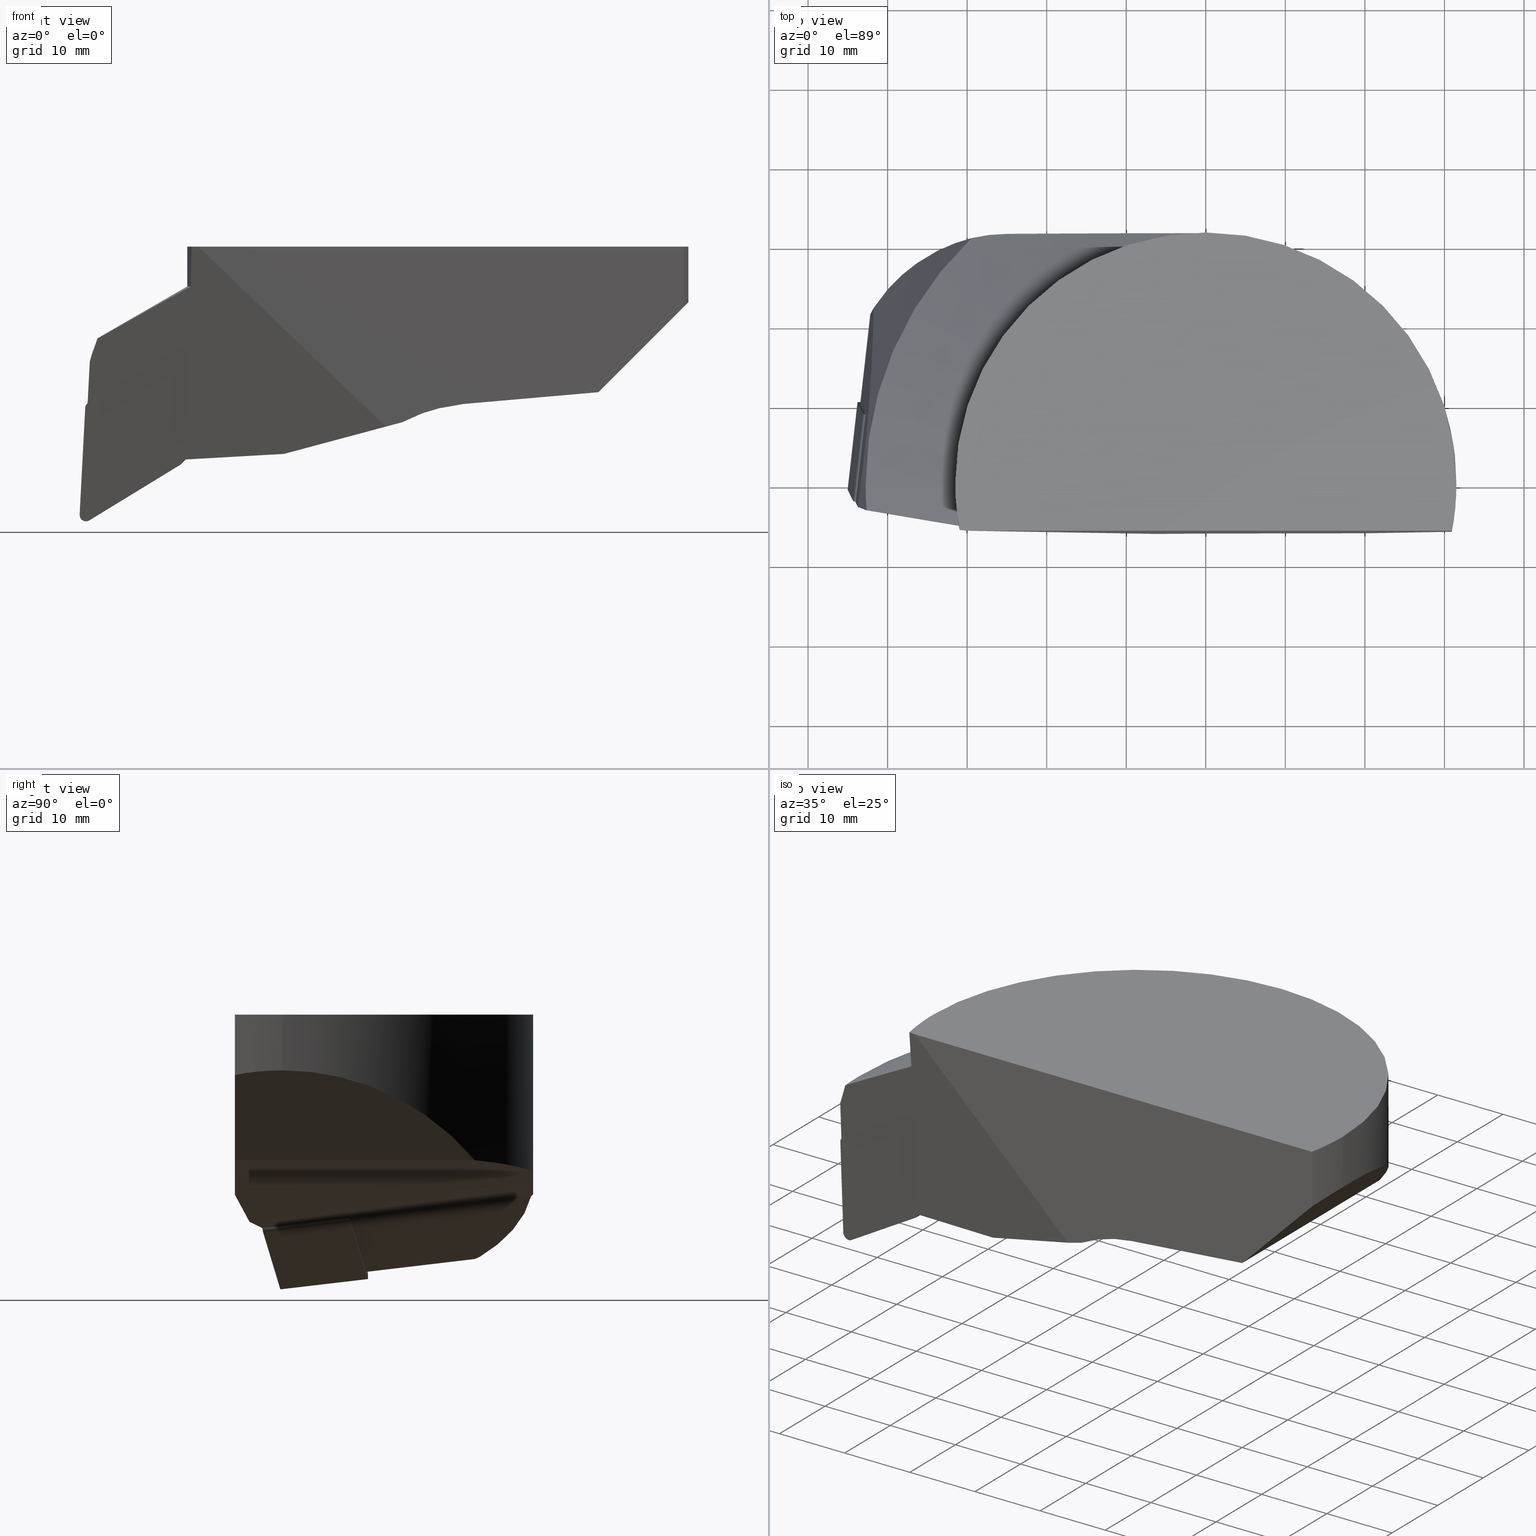
[diagram: canonical four-view strip — front | top / right | iso, engineering-drawing reading convention]
A machine part, canonical four-view strip (front | top / right | iso — engineering-drawing reading convention). The complete STEP part file that produces these views, byte-faithful:
ISO-10303-21;
HEADER;
FILE_DESCRIPTION((''),'1');
FILE_NAME('//Big_tech03/bigt/Translate/11_3D_Field/02_Step_Field/91_\X2\65CB524A30C430FC30EB\X0\/F\X2\30AB30FC30C830EA30C330B8\X0\/F63-DDJNL-45035-15.stp','2012-12-17T05:11:24',(''),(''),'Spatial Interop R18','Kubotek KeyCreator V8.5.1 (14335)',' ');
FILE_SCHEMA(('CONFIG_CONTROL_DESIGN'));
ENDSEC;
DATA;
#1=DESIGN_CONTEXT('',#27,'design');
#2=APPLICATION_PROTOCOL_DEFINITION('INTERNATIONAL STANDARD','config_control_design',1994,#27);
#3=PRODUCT_CATEGORY_RELATIONSHIP('NONE','NONE',#28,#29);
#4=DATE_AND_TIME(#30,#31);
#5=DATE_TIME_ROLE('creation_date');
#6=DATE_TIME_ROLE('classification_date');
#7=PERSON_AND_ORGANIZATION_ROLE('creator');
#8=PERSON_AND_ORGANIZATION_ROLE('design_supplier');
#9=PERSON_AND_ORGANIZATION_ROLE('classification_officer');
#10=PERSON_AND_ORGANIZATION_ROLE('design_owner');
#11=APPROVAL_PERSON_ORGANIZATION(#32,#33,#34);
#12=APPROVAL_DATE_TIME(#4,#33);
#13=CC_DESIGN_APPROVAL(#33,(#35,#36,#37));
#14=CC_DESIGN_DATE_AND_TIME_ASSIGNMENT(#4,#5,(#37));
#15=CC_DESIGN_DATE_AND_TIME_ASSIGNMENT(#4,#6,(#35));
#16=CC_DESIGN_PERSON_AND_ORGANIZATION_ASSIGNMENT(#32,#10,(#38));
#17=CC_DESIGN_PERSON_AND_ORGANIZATION_ASSIGNMENT(#32,#7,(#37));
#18=CC_DESIGN_PERSON_AND_ORGANIZATION_ASSIGNMENT(#32,#7,(#36));
#19=CC_DESIGN_PERSON_AND_ORGANIZATION_ASSIGNMENT(#32,#8,(#36));
#20=CC_DESIGN_SECURITY_CLASSIFICATION(#35,(#36));
#21=CC_DESIGN_PERSON_AND_ORGANIZATION_ASSIGNMENT(#32,#9,(#35));
#22=SHAPE_DEFINITION_REPRESENTATION(#39,#40);
#23= (GEOMETRIC_REPRESENTATION_CONTEXT(3)GLOBAL_UNCERTAINTY_ASSIGNED_CONTEXT((#43))GLOBAL_UNIT_ASSIGNED_CONTEXT((#45,#46,#47))REPRESENTATION_CONTEXT('NONE','WORKSPACE'));
#27=APPLICATION_CONTEXT('CONFIGURATION CONTROLLED 3D DESIGNS OF MECHANICAL PARTS AND ASSEMBLIES');
#28=PRODUCT_CATEGORY('part','NONE');
#29=PRODUCT_RELATED_PRODUCT_CATEGORY('detail',' ',(#38));
#30=CALENDAR_DATE(2012,17,11);
#31=LOCAL_TIME(14,11,24.0,#49);
#32=PERSON_AND_ORGANIZATION(#50,#51);
#33=APPROVAL(#52,'SOLID MODEL');
#34=APPROVAL_ROLE('APPROVED');
#35=SECURITY_CLASSIFICATION('','',#53);
#36=PRODUCT_DEFINITION_FORMATION_WITH_SPECIFIED_SOURCE(' ','NONE',#38,.NOT_KNOWN.);
#37=PRODUCT_DEFINITION('NONE','NONE',#36,#1);
#38=PRODUCT('1','1','PART-1-DESC',(#54));
#39=PRODUCT_DEFINITION_SHAPE('NONE','NONE',#37);
#40=ADVANCED_BREP_SHAPE_REPRESENTATION('1',(#55,#56),#23);
#43=UNCERTAINTY_MEASURE_WITH_UNIT(LENGTH_MEASURE(1.0E-006),#45,'','');
#45= (CONVERSION_BASED_UNIT('MILLIMETRE',#59)LENGTH_UNIT()NAMED_UNIT(#62));
#46= (NAMED_UNIT(#64)PLANE_ANGLE_UNIT()SI_UNIT($,.RADIAN.));
#47= (NAMED_UNIT(#64)SOLID_ANGLE_UNIT()SI_UNIT($,.STERADIAN.));
#49=COORDINATED_UNIVERSAL_TIME_OFFSET(9,0,.AHEAD.);
#50=PERSON('','UNSPECIFIED',$,$,$,$);
#51=ORGANIZATION('UNSPECIFIED','UNSPECIFIED','UNSPECIFIED');
#52=APPROVAL_STATUS('approved');
#53=SECURITY_CLASSIFICATION_LEVEL('unclassified');
#54=MECHANICAL_CONTEXT('',#27,'mechanical');
#55=MANIFOLD_SOLID_BREP('1',#70);
#56=AXIS2_PLACEMENT_3D('',#71,#72,#73);
#59=LENGTH_MEASURE_WITH_UNIT(LENGTH_MEASURE(1.0),#74);
#62=DIMENSIONAL_EXPONENTS(1.0,0.0,0.0,0.0,0.0,0.0,0.0);
#64=DIMENSIONAL_EXPONENTS(0.0,0.0,0.0,0.0,0.0,0.0,0.0);
#70=CLOSED_SHELL('',(#75,#76,#77,#78,#79,#80,#81,#82,#83,#84,#85,#86,#87,#88,#89,#90,#91,#92,#93,#94,#95,#96,#97,#98,#99,#100,#101,#102,#103,#104,#105,#106));
#71=CARTESIAN_POINT('',(0.0,0.0,0.0));
#72=DIRECTION('',(0.0,0.0,1.0));
#73=DIRECTION('',(1.0,0.0,0.0));
#74= (NAMED_UNIT(#62)LENGTH_UNIT()SI_UNIT(.MILLI.,.METRE.));
#75=ADVANCED_FACE('',(#108),#109,.T.);
#76=ADVANCED_FACE('',(#110),#111,.T.);
#77=ADVANCED_FACE('',(#112),#113,.T.);
#78=ADVANCED_FACE('',(#114),#115,.F.);
#79=ADVANCED_FACE('',(#116),#117,.T.);
#80=ADVANCED_FACE('',(#118),#119,.T.);
#81=ADVANCED_FACE('',(#120),#121,.T.);
#82=ADVANCED_FACE('',(#122),#123,.T.);
#83=ADVANCED_FACE('',(#124),#125,.T.);
#84=ADVANCED_FACE('',(#126),#127,.F.);
#85=ADVANCED_FACE('',(#128),#129,.F.);
#86=ADVANCED_FACE('',(#130),#131,.F.);
#87=ADVANCED_FACE('',(#132),#133,.F.);
#88=ADVANCED_FACE('',(#134),#135,.F.);
#89=ADVANCED_FACE('',(#136),#137,.F.);
#90=ADVANCED_FACE('',(#138),#139,.F.);
#91=ADVANCED_FACE('',(#140),#141,.F.);
#92=ADVANCED_FACE('',(#142),#143,.F.);
#93=ADVANCED_FACE('',(#144),#145,.F.);
#94=ADVANCED_FACE('',(#146),#147,.F.);
#95=ADVANCED_FACE('',(#148),#149,.T.);
#96=ADVANCED_FACE('',(#150),#151,.T.);
#97=ADVANCED_FACE('',(#152),#153,.T.);
#98=ADVANCED_FACE('',(#154),#155,.T.);
#99=ADVANCED_FACE('',(#156),#157,.T.);
#100=ADVANCED_FACE('',(#158),#159,.T.);
#101=ADVANCED_FACE('',(#160),#161,.T.);
#102=ADVANCED_FACE('',(#162),#163,.F.);
#103=ADVANCED_FACE('',(#164),#165,.F.);
#104=ADVANCED_FACE('',(#166),#167,.F.);
#105=ADVANCED_FACE('',(#168),#169,.F.);
#106=ADVANCED_FACE('',(#170),#171,.F.);
#108=FACE_OUTER_BOUND('',#172,.T.);
#109=CYLINDRICAL_SURFACE('',#173,1.2);
#110=FACE_OUTER_BOUND('',#174,.T.);
#111=CYLINDRICAL_SURFACE('',#175,20.0);
#112=FACE_OUTER_BOUND('',#176,.T.);
#113=PLANE('',#177);
#114=FACE_OUTER_BOUND('',#178,.T.);
#115=PLANE('',#179);
#116=FACE_OUTER_BOUND('',#180,.T.);
#117=CYLINDRICAL_SURFACE('',#181,0.799999999916283);
#118=FACE_OUTER_BOUND('',#182,.T.);
#119=CYLINDRICAL_SURFACE('',#183,0.800000000092216);
#120=FACE_OUTER_BOUND('',#184,.T.);
#121=PLANE('',#185);
#122=FACE_OUTER_BOUND('',#186,.T.);
#123=CYLINDRICAL_SURFACE('',#187,0.800000000003615);
#124=FACE_OUTER_BOUND('',#188,.T.);
#125=PLANE('',#189);
#126=FACE_OUTER_BOUND('',#190,.T.);
#127=PLANE('',#191);
#128=FACE_OUTER_BOUND('',#192,.T.);
#129=PLANE('',#193);
#130=FACE_OUTER_BOUND('',#194,.T.);
#131=CYLINDRICAL_SURFACE('',#195,0.800000000092215);
#132=FACE_OUTER_BOUND('',#196,.T.);
#133=CYLINDRICAL_SURFACE('',#197,0.799999999916283);
#134=FACE_OUTER_BOUND('',#198,.T.);
#135=PLANE('',#199);
#136=FACE_OUTER_BOUND('',#200,.T.);
#137=CYLINDRICAL_SURFACE('',#201,0.79999999855735);
#138=FACE_OUTER_BOUND('',#202,.T.);
#139=PLANE('',#203);
#140=FACE_OUTER_BOUND('',#204,.T.);
#141=PLANE('',#205);
#142=FACE_OUTER_BOUND('',#206,.T.);
#143=PLANE('',#207);
#144=FACE_OUTER_BOUND('',#208,.T.);
#145=CYLINDRICAL_SURFACE('',#209,20.0);
#146=FACE_OUTER_BOUND('',#210,.T.);
#147=PLANE('',#211);
#148=FACE_OUTER_BOUND('',#212,.T.);
#149=CONICAL_SURFACE('',#213,42.7806144481552,0.349065849601132);
#150=FACE_OUTER_BOUND('',#214,.T.);
#151=CONICAL_SURFACE('',#215,33.0934934796696,1.0471975488034);
#152=FACE_OUTER_BOUND('',#216,.T.);
#153=CYLINDRICAL_SURFACE('',#217,31.5);
#154=FACE_OUTER_BOUND('',#218,.T.);
#155=CYLINDRICAL_SURFACE('',#219,31.5);
#156=FACE_OUTER_BOUND('',#220,.T.);
#157=CYLINDRICAL_SURFACE('',#221,31.5);
#158=FACE_OUTER_BOUND('',#222,.T.);
#159=CONICAL_SURFACE('',#223,33.1066753683403,1.0471975488034);
#160=FACE_OUTER_BOUND('',#224,.T.);
#161=CONICAL_SURFACE('',#225,42.9119649542641,0.349065849601121);
#162=FACE_OUTER_BOUND('',#226,.T.);
#163=PLANE('',#227);
#164=FACE_OUTER_BOUND('',#228,.T.);
#165=PLANE('',#229);
#166=FACE_OUTER_BOUND('',#230,.T.);
#167=PLANE('',#231);
#168=FACE_OUTER_BOUND('',#232,.T.);
#169=PLANE('',#233);
#170=FACE_OUTER_BOUND('',#234,.T.);
#171=PLANE('',#235);
#172=EDGE_LOOP('',(#236,#237,#238,#239));
#173=AXIS2_PLACEMENT_3D('',#240,#241,#242);
#174=EDGE_LOOP('',(#243,#244,#245,#246,#247,#248,#249));
#175=AXIS2_PLACEMENT_3D('',#250,#251,#252);
#176=EDGE_LOOP('',(#253,#254,#255,#256,#257,#258,#259,#260));
#177=AXIS2_PLACEMENT_3D('',#261,#262,#263);
#178=EDGE_LOOP('',(#264,#265,#266,#267,#268,#269,#270,#271));
#179=AXIS2_PLACEMENT_3D('',#272,#273,#274);
#180=EDGE_LOOP('',(#275,#276,#277,#278));
#181=AXIS2_PLACEMENT_3D('',#279,#280,#281);
#182=EDGE_LOOP('',(#282,#283,#284,#285));
#183=AXIS2_PLACEMENT_3D('',#286,#287,#288);
#184=EDGE_LOOP('',(#289,#290,#291,#292));
#185=AXIS2_PLACEMENT_3D('',#293,#294,#295);
#186=EDGE_LOOP('',(#296,#297,#298,#299));
#187=AXIS2_PLACEMENT_3D('',#300,#301,#302);
#188=EDGE_LOOP('',(#303,#304,#305,#306));
#189=AXIS2_PLACEMENT_3D('',#307,#308,#309);
#190=EDGE_LOOP('',(#310,#311,#312,#313,#314,#315,#316,#317,#318,#319));
#191=AXIS2_PLACEMENT_3D('',#320,#321,#322);
#192=EDGE_LOOP('',(#323,#324,#325,#326));
#193=AXIS2_PLACEMENT_3D('',#327,#328,#329);
#194=EDGE_LOOP('',(#330,#331,#332,#333));
#195=AXIS2_PLACEMENT_3D('',#334,#335,#336);
#196=EDGE_LOOP('',(#337,#338,#339,#340));
#197=AXIS2_PLACEMENT_3D('',#341,#342,#343);
#198=EDGE_LOOP('',(#344,#345,#346,#347));
#199=AXIS2_PLACEMENT_3D('',#348,#349,#350);
#200=EDGE_LOOP('',(#351,#352,#353,#354));
#201=AXIS2_PLACEMENT_3D('',#355,#356,#357);
#202=EDGE_LOOP('',(#358,#359,#360,#361,#362,#363));
#203=AXIS2_PLACEMENT_3D('',#364,#365,#366);
#204=EDGE_LOOP('',(#367,#368,#369,#370,#371,#372,#373));
#205=AXIS2_PLACEMENT_3D('',#374,#375,#376);
#206=EDGE_LOOP('',(#377,#378,#379,#380));
#207=AXIS2_PLACEMENT_3D('',#381,#382,#383);
#208=EDGE_LOOP('',(#384,#385,#386,#387,#388,#389));
#209=AXIS2_PLACEMENT_3D('',#390,#391,#392);
#210=EDGE_LOOP('',(#393,#394,#395,#396,#397));
#211=AXIS2_PLACEMENT_3D('',#398,#399,#400);
#212=EDGE_LOOP('',(#401,#402,#403,#404));
#213=AXIS2_PLACEMENT_3D('',#405,#406,#407);
#214=EDGE_LOOP('',(#408,#409,#410,#411,#412));
#215=AXIS2_PLACEMENT_3D('',#413,#414,#415);
#216=EDGE_LOOP('',(#416,#417,#418,#419));
#217=AXIS2_PLACEMENT_3D('',#420,#421,#422);
#218=EDGE_LOOP('',(#423,#424,#425,#426,#427,#428,#429,#430));
#219=AXIS2_PLACEMENT_3D('',#431,#432,#433);
#220=EDGE_LOOP('',(#434,#435,#436,#437));
#221=AXIS2_PLACEMENT_3D('',#438,#439,#440);
#222=EDGE_LOOP('',(#441,#442,#443,#444));
#223=AXIS2_PLACEMENT_3D('',#445,#446,#447);
#224=EDGE_LOOP('',(#448,#449,#450,#451));
#225=AXIS2_PLACEMENT_3D('',#452,#453,#454);
#226=EDGE_LOOP('',(#455,#456,#457,#458,#459,#460,#461,#462,#463,#464,#465,#466,#467,#468));
#227=AXIS2_PLACEMENT_3D('',#469,#470,#471);
#228=EDGE_LOOP('',(#472,#473,#474,#475,#476));
#229=AXIS2_PLACEMENT_3D('',#477,#478,#479);
#230=EDGE_LOOP('',(#480,#481,#482,#483));
#231=AXIS2_PLACEMENT_3D('',#484,#485,#486);
#232=EDGE_LOOP('',(#487,#488,#489,#490,#491,#492,#493));
#233=AXIS2_PLACEMENT_3D('',#494,#495,#496);
#234=EDGE_LOOP('',(#497,#498,#499,#500));
#235=AXIS2_PLACEMENT_3D('',#501,#502,#503);
#236=ORIENTED_EDGE('',*,*,#504,.F.);
#237=ORIENTED_EDGE('',*,*,#505,.T.);
#238=ORIENTED_EDGE('',*,*,#506,.T.);
#239=ORIENTED_EDGE('',*,*,#507,.F.);
#240=CARTESIAN_POINT('',(-42.2473332457357,10.3813485368924,-31.1449538277493));
#241=DIRECTION('',(-0.111468932180646,-0.986981129763168,-0.115943635659434));
#242=DIRECTION('',(0.992405994768391,-0.104449876167681,-0.0649658750138644));
#243=ORIENTED_EDGE('',*,*,#504,.T.);
#244=ORIENTED_EDGE('',*,*,#508,.F.);
#245=ORIENTED_EDGE('',*,*,#509,.T.);
#246=ORIENTED_EDGE('',*,*,#510,.T.);
#247=ORIENTED_EDGE('',*,*,#511,.T.);
#248=ORIENTED_EDGE('',*,*,#512,.T.);
#249=ORIENTED_EDGE('',*,*,#513,.T.);
#250=CARTESIAN_POINT('',(-25.0,11.5,-27.1398531867254));
#251=DIRECTION('',(-0.0,-0.0,-1.0));
#252=DIRECTION('',(-0.868594311794104,-0.495523885921685,0.0));
#253=ORIENTED_EDGE('',*,*,#514,.F.);
#254=ORIENTED_EDGE('',*,*,#515,.F.);
#255=ORIENTED_EDGE('',*,*,#516,.F.);
#256=ORIENTED_EDGE('',*,*,#517,.F.);
#257=ORIENTED_EDGE('',*,*,#518,.F.);
#258=ORIENTED_EDGE('',*,*,#519,.F.);
#259=ORIENTED_EDGE('',*,*,#520,.F.);
#260=ORIENTED_EDGE('',*,*,#506,.F.);
#261=CARTESIAN_POINT('',(-40.0939677485227,9.71883845017198,-27.5755332299906));
#262=DIRECTION('',(0.111468932180646,0.986981129763168,0.115943635659434));
#263=DIRECTION('',(0.0,-0.11667073712445,0.993170649535535));
#264=ORIENTED_EDGE('',*,*,#507,.T.);
#265=ORIENTED_EDGE('',*,*,#520,.T.);
#266=ORIENTED_EDGE('',*,*,#521,.T.);
#267=ORIENTED_EDGE('',*,*,#522,.T.);
#268=ORIENTED_EDGE('',*,*,#523,.F.);
#269=ORIENTED_EDGE('',*,*,#524,.T.);
#270=ORIENTED_EDGE('',*,*,#525,.T.);
#271=ORIENTED_EDGE('',*,*,#508,.T.);
#272=CARTESIAN_POINT('',(-42.8669603047499,9.81615057373341,-21.230314038411));
#273=DIRECTION('',(0.992405994765368,-0.104449876194446,-0.0649658750170109));
#274=DIRECTION('',(-0.0653231828941861,1.15962657470321E-018,-0.997864159981995));
#275=ORIENTED_EDGE('',*,*,#521,.F.);
#276=ORIENTED_EDGE('',*,*,#519,.T.);
#277=ORIENTED_EDGE('',*,*,#526,.T.);
#278=ORIENTED_EDGE('',*,*,#527,.T.);
#279=CARTESIAN_POINT('',(-42.2867693535104,8.96109274568335,-19.0169783835985));
#280=DIRECTION('',(0.111468932180646,0.986981129763168,0.115943635659434));
#281=DIRECTION('',(-0.526656513222584,-0.0402689242801194,0.849123860704404));
#282=ORIENTED_EDGE('',*,*,#528,.F.);
#283=ORIENTED_EDGE('',*,*,#529,.T.);
#284=ORIENTED_EDGE('',*,*,#530,.F.);
#285=ORIENTED_EDGE('',*,*,#515,.T.);
#286=CARTESIAN_POINT('',(-31.5712930246008,8.50831995422721,-25.4646328727936));
#287=DIRECTION('',(0.111468932180646,0.986981129763168,0.115943635659434));
#288=DIRECTION('',(0.526656513222579,0.0402689242801204,-0.849123860704407));
#289=ORIENTED_EDGE('',*,*,#531,.T.);
#290=ORIENTED_EDGE('',*,*,#532,.F.);
#291=ORIENTED_EDGE('',*,*,#516,.T.);
#292=ORIENTED_EDGE('',*,*,#530,.T.);
#293=CARTESIAN_POINT('',(-31.1499678139742,8.54053509365502,-26.1439319614354));
#294=DIRECTION('',(0.526656513222576,0.040268924280121,-0.849123860704409));
#295=DIRECTION('',(-0.84981316293397,-3.57659895301419E-018,-0.527084042733377));
#296=ORIENTED_EDGE('',*,*,#533,.T.);
#297=ORIENTED_EDGE('',*,*,#534,.F.);
#298=ORIENTED_EDGE('',*,*,#517,.T.);
#299=ORIENTED_EDGE('',*,*,#532,.T.);
#300=CARTESIAN_POINT('',(-42.9908988982399,10.6183296433376,-32.4474091977405));
#301=DIRECTION('',(0.111468932180646,0.986981129763168,0.115943635659434));
#302=DIRECTION('',(-0.992408446727965,0.104455644609561,0.0649191279376828));
#303=ORIENTED_EDGE('',*,*,#535,.T.);
#304=ORIENTED_EDGE('',*,*,#526,.F.);
#305=ORIENTED_EDGE('',*,*,#518,.T.);
#306=ORIENTED_EDGE('',*,*,#534,.T.);
#307=CARTESIAN_POINT('',(-43.7848256556258,10.7018941590256,-32.3954738953901));
#308=DIRECTION('',(-0.99240844672796,0.10445564460955,0.0649191279377773));
#309=DIRECTION('',(0.0652762184737185,-1.15969061697585E-018,0.997867233303996));
#310=ORIENTED_EDGE('',*,*,#527,.F.);
#311=ORIENTED_EDGE('',*,*,#535,.F.);
#312=ORIENTED_EDGE('',*,*,#533,.F.);
#313=ORIENTED_EDGE('',*,*,#531,.F.);
#314=ORIENTED_EDGE('',*,*,#529,.F.);
#315=ORIENTED_EDGE('',*,*,#536,.F.);
#316=ORIENTED_EDGE('',*,*,#537,.F.);
#317=ORIENTED_EDGE('',*,*,#538,.F.);
#318=ORIENTED_EDGE('',*,*,#539,.F.);
#319=ORIENTED_EDGE('',*,*,#540,.F.);
#320=CARTESIAN_POINT('',(-41.3323875850497,-1.24652190149681,-28.8636670221669));
#321=DIRECTION('',(0.111468932180646,0.986981129763168,0.115943635659434));
#322=DIRECTION('',(-2.38064870801066E-018,-0.11667073712445,0.993170649535535));
#323=ORIENTED_EDGE('',*,*,#537,.T.);
#324=ORIENTED_EDGE('',*,*,#541,.F.);
#325=ORIENTED_EDGE('',*,*,#542,.F.);
#326=ORIENTED_EDGE('',*,*,#543,.T.);
#327=CARTESIAN_POINT('',(-32.0236419733036,-2.63455542770529,-26.7736259156798));
#328=DIRECTION('',(0.992408446739063,-0.104455644635683,-0.0649191277259903));
#329=DIRECTION('',(-0.0652762182609467,0.0,-0.997867233317914));
#330=ORIENTED_EDGE('',*,*,#536,.T.);
#331=ORIENTED_EDGE('',*,*,#544,.F.);
#332=ORIENTED_EDGE('',*,*,#545,.F.);
#333=ORIENTED_EDGE('',*,*,#541,.T.);
#334=CARTESIAN_POINT('',(-32.819745065024,-2.54586869912027,-26.7632015921792));
#335=DIRECTION('',(-0.111468932180646,-0.986981129763168,-0.115943635659434));
#336=DIRECTION('',(0.52665651322258,0.0402689242801203,-0.849123860704407));
#337=ORIENTED_EDGE('',*,*,#540,.T.);
#338=ORIENTED_EDGE('',*,*,#546,.F.);
#339=ORIENTED_EDGE('',*,*,#547,.F.);
#340=ORIENTED_EDGE('',*,*,#522,.F.);
#341=CARTESIAN_POINT('',(-43.5352213939337,-2.09309590766413,-20.3155471029842));
#342=DIRECTION('',(-0.111468932180646,-0.986981129763168,-0.115943635659434));
#343=DIRECTION('',(-0.526656513222585,-0.0402689242801194,0.849123860704404));
#344=ORIENTED_EDGE('',*,*,#539,.T.);
#345=ORIENTED_EDGE('',*,*,#548,.F.);
#346=ORIENTED_EDGE('',*,*,#549,.F.);
#347=ORIENTED_EDGE('',*,*,#546,.T.);
#348=CARTESIAN_POINT('',(-32.5369407313422,-4.2353207360881,-12.6534716899625));
#349=DIRECTION('',(-0.526656513222585,-0.0402689242801194,0.849123860704404));
#350=DIRECTION('',(0.849813162933965,3.57659895301404E-018,0.527084042733387));
#351=ORIENTED_EDGE('',*,*,#538,.T.);
#352=ORIENTED_EDGE('',*,*,#543,.F.);
#353=ORIENTED_EDGE('',*,*,#550,.F.);
#354=ORIENTED_EDGE('',*,*,#548,.T.);
#355=CARTESIAN_POINT('',(-32.115615521524,-4.2031055967221,-13.332770777301));
#356=DIRECTION('',(-0.111468932180646,-0.986981129763168,-0.115943635659434));
#357=DIRECTION('',(0.992408446739063,-0.104455644635683,-0.0649191277259903));
#358=ORIENTED_EDGE('',*,*,#551,.F.);
#359=ORIENTED_EDGE('',*,*,#552,.F.);
#360=ORIENTED_EDGE('',*,*,#553,.T.);
#361=ORIENTED_EDGE('',*,*,#512,.F.);
#362=ORIENTED_EDGE('',*,*,#554,.F.);
#363=ORIENTED_EDGE('',*,*,#555,.F.);
#364=CARTESIAN_POINT('',(-0.720414981987392,-6.37878177273581,-24.9956631978092));
#365=DIRECTION('',(-0.0693217457636744,-0.108663956272754,0.991658530025043));
#366=DIRECTION('',(0.997565574209178,0.0,0.069734676830921));
#367=ORIENTED_EDGE('',*,*,#513,.F.);
#368=ORIENTED_EDGE('',*,*,#553,.F.);
#369=ORIENTED_EDGE('',*,*,#556,.F.);
#370=ORIENTED_EDGE('',*,*,#544,.T.);
#371=ORIENTED_EDGE('',*,*,#528,.T.);
#372=ORIENTED_EDGE('',*,*,#514,.T.);
#373=ORIENTED_EDGE('',*,*,#505,.F.);
#374=CARTESIAN_POINT('',(-31.9134787970104,-2.64773221190853,-26.7673688604443));
#375=DIRECTION('',(-0.526616764544056,-0.0402762685221387,0.849148164630345));
#376=DIRECTION('',(0.849837738355606,0.0,0.527044417925689));
#377=ORIENTED_EDGE('',*,*,#551,.T.);
#378=ORIENTED_EDGE('',*,*,#557,.T.);
#379=ORIENTED_EDGE('',*,*,#558,.T.);
#380=ORIENTED_EDGE('',*,*,#559,.T.);
#381=CARTESIAN_POINT('',(-13.0454160017784,10.690496148003,-24.3672426623839));
#382=DIRECTION('',(-0.258819045102521,0.0,0.965925826289068));
#383=DIRECTION('',(0.965925826289068,0.0,0.258819045102521));
#384=ORIENTED_EDGE('',*,*,#555,.T.);
#385=ORIENTED_EDGE('',*,*,#560,.T.);
#386=ORIENTED_EDGE('',*,*,#561,.F.);
#387=ORIENTED_EDGE('',*,*,#562,.T.);
#388=ORIENTED_EDGE('',*,*,#563,.T.);
#389=ORIENTED_EDGE('',*,*,#557,.F.);
#390=CARTESIAN_POINT('',(5.00000000000002,24.0000194638791,-39.7));
#391=DIRECTION('',(-0.0,1.0,0.0));
#392=DIRECTION('',(-0.958611886636189,0.0,-0.284716088059328));
#393=ORIENTED_EDGE('',*,*,#554,.T.);
#394=ORIENTED_EDGE('',*,*,#511,.F.);
#395=ORIENTED_EDGE('',*,*,#564,.F.);
#396=ORIENTED_EDGE('',*,*,#565,.F.);
#397=ORIENTED_EDGE('',*,*,#560,.F.);
#398=CARTESIAN_POINT('',(-12.5,31.5,-14.01620758632));
#399=DIRECTION('',(0.0,-1.0,0.0));
#400=DIRECTION('',(0.0,0.0,-1.0));
#401=ORIENTED_EDGE('',*,*,#566,.F.);
#402=ORIENTED_EDGE('',*,*,#567,.F.);
#403=ORIENTED_EDGE('',*,*,#509,.F.);
#404=ORIENTED_EDGE('',*,*,#525,.F.);
#405=CARTESIAN_POINT('',(0.0,-2.99760216648792E-014,-11.561225304359));
#406=DIRECTION('',(0.0,-0.0,-1.0));
#407=DIRECTION('',(0.394471910307187,0.918907999735881,0.0));
#408=ORIENTED_EDGE('',*,*,#568,.F.);
#409=ORIENTED_EDGE('',*,*,#569,.F.);
#410=ORIENTED_EDGE('',*,*,#564,.T.);
#411=ORIENTED_EDGE('',*,*,#510,.F.);
#412=ORIENTED_EDGE('',*,*,#567,.T.);
#413=CARTESIAN_POINT('',(2.66453525910038E-014,4.21884749357559E-014,-5.92000387656159));
#414=DIRECTION('',(0.0,-0.0,-1.0));
#415=DIRECTION('',(0.707106781186547,0.707106781186548,0.0));
#416=ORIENTED_EDGE('',*,*,#570,.T.);
#417=ORIENTED_EDGE('',*,*,#571,.F.);
#418=ORIENTED_EDGE('',*,*,#572,.T.);
#419=ORIENTED_EDGE('',*,*,#573,.F.);
#420=CARTESIAN_POINT('',(1.11022302462516E-014,8.88178419700125E-015,-1.51534156157351));
#421=DIRECTION('',(0.0,-0.0,1.0));
#422=DIRECTION('',(-0.095677020168762,-0.9954124310112,0.0));
#423=ORIENTED_EDGE('',*,*,#574,.F.);
#424=ORIENTED_EDGE('',*,*,#575,.F.);
#425=ORIENTED_EDGE('',*,*,#570,.F.);
#426=ORIENTED_EDGE('',*,*,#576,.F.);
#427=ORIENTED_EDGE('',*,*,#577,.T.);
#428=ORIENTED_EDGE('',*,*,#561,.T.);
#429=ORIENTED_EDGE('',*,*,#565,.T.);
#430=ORIENTED_EDGE('',*,*,#569,.T.);
#431=CARTESIAN_POINT('',(1.22124532708767E-014,4.44089209850063E-015,-4.06702151976236));
#432=DIRECTION('',(-0.0,-0.0,1.0));
#433=DIRECTION('',(0.0,-1.0,0.0));
#434=ORIENTED_EDGE('',*,*,#574,.T.);
#435=ORIENTED_EDGE('',*,*,#578,.T.);
#436=ORIENTED_EDGE('',*,*,#579,.F.);
#437=ORIENTED_EDGE('',*,*,#580,.F.);
#438=CARTESIAN_POINT('',(9.99200722162641E-015,4.44089209850063E-015,-1.0000000031111));
#439=DIRECTION('',(-0.0,-0.0,1.0));
#440=DIRECTION('',(-0.0940980636667502,0.995562933427198,0.0));
#441=ORIENTED_EDGE('',*,*,#568,.T.);
#442=ORIENTED_EDGE('',*,*,#581,.T.);
#443=ORIENTED_EDGE('',*,*,#582,.F.);
#444=ORIENTED_EDGE('',*,*,#578,.F.);
#445=CARTESIAN_POINT('',(-1.33226762955019E-014,-1.11022302462516E-015,-5.92761444357608));
#446=DIRECTION('',(-0.0,0.0,-1.0));
#447=DIRECTION('',(-0.0844648582605607,0.996426458761018,0.0));
#448=ORIENTED_EDGE('',*,*,#566,.T.);
#449=ORIENTED_EDGE('',*,*,#524,.F.);
#450=ORIENTED_EDGE('',*,*,#583,.F.);
#451=ORIENTED_EDGE('',*,*,#581,.F.);
#452=CARTESIAN_POINT('',(1.77635683940025E-014,4.44089209850063E-015,-11.9221078548224));
#453=DIRECTION('',(-0.0,0.0,-1.0));
#454=DIRECTION('',(-0.0378000786848839,0.999285321643131,0.0));
#455=ORIENTED_EDGE('',*,*,#545,.T.);
#456=ORIENTED_EDGE('',*,*,#556,.T.);
#457=ORIENTED_EDGE('',*,*,#552,.T.);
#458=ORIENTED_EDGE('',*,*,#559,.F.);
#459=ORIENTED_EDGE('',*,*,#584,.T.);
#460=ORIENTED_EDGE('',*,*,#585,.T.);
#461=ORIENTED_EDGE('',*,*,#579,.T.);
#462=ORIENTED_EDGE('',*,*,#582,.T.);
#463=ORIENTED_EDGE('',*,*,#583,.T.);
#464=ORIENTED_EDGE('',*,*,#523,.T.);
#465=ORIENTED_EDGE('',*,*,#547,.T.);
#466=ORIENTED_EDGE('',*,*,#549,.T.);
#467=ORIENTED_EDGE('',*,*,#550,.T.);
#468=ORIENTED_EDGE('',*,*,#542,.T.);
#469=CARTESIAN_POINT('',(-25.772000445692,-4.45759751287333,-17.2651753215983));
#470=DIRECTION('',(0.111468932180646,0.986981129763168,0.115943635659434));
#471=DIRECTION('',(0.0,-0.11667073712445,0.993170649535535));
#472=ORIENTED_EDGE('',*,*,#571,.T.);
#473=ORIENTED_EDGE('',*,*,#575,.T.);
#474=ORIENTED_EDGE('',*,*,#580,.T.);
#475=ORIENTED_EDGE('',*,*,#585,.F.);
#476=ORIENTED_EDGE('',*,*,#586,.T.);
#477=CARTESIAN_POINT('',(0.0,12.75,0.0));
#478=DIRECTION('',(0.0,0.0,-1.0));
#479=DIRECTION('',(-1.0,0.0,0.0));
#480=ORIENTED_EDGE('',*,*,#576,.T.);
#481=ORIENTED_EDGE('',*,*,#573,.T.);
#482=ORIENTED_EDGE('',*,*,#587,.T.);
#483=ORIENTED_EDGE('',*,*,#588,.T.);
#484=CARTESIAN_POINT('',(25.8534106077438,9.08236707319101,-12.6465893922562));
#485=DIRECTION('',(-0.707106781186548,-1.3012649565089E-016,0.707106781186547));
#486=DIRECTION('',(0.707106781186547,0.0,0.707106781186548));
#487=ORIENTED_EDGE('',*,*,#584,.F.);
#488=ORIENTED_EDGE('',*,*,#558,.F.);
#489=ORIENTED_EDGE('',*,*,#563,.F.);
#490=ORIENTED_EDGE('',*,*,#589,.F.);
#491=ORIENTED_EDGE('',*,*,#587,.F.);
#492=ORIENTED_EDGE('',*,*,#572,.F.);
#493=ORIENTED_EDGE('',*,*,#586,.F.);
#494=CARTESIAN_POINT('',(0.424979142992648,-6.00000000000001,-11.3121667590765));
#495=DIRECTION('',(0.0,1.0,0.0));
#496=DIRECTION('',(0.0,0.0,1.0));
#497=ORIENTED_EDGE('',*,*,#589,.T.);
#498=ORIENTED_EDGE('',*,*,#562,.F.);
#499=ORIENTED_EDGE('',*,*,#577,.F.);
#500=ORIENTED_EDGE('',*,*,#588,.F.);
#501=CARTESIAN_POINT('',(11.7318531802672,12.6655888746,-19.0346424113388));
#502=DIRECTION('',(-0.0871557427476571,0.0,0.996194698091746));
#503=DIRECTION('',(0.996194698091746,0.0,0.0871557427476571));
#504=EDGE_CURVE('',#590,#591,#592,.T.);
#505=EDGE_CURVE('',#590,#593,#594,.T.);
#506=EDGE_CURVE('',#593,#595,#596,.T.);
#507=EDGE_CURVE('',#591,#595,#597,.T.);
#508=EDGE_CURVE('',#598,#591,#599,.T.);
#509=EDGE_CURVE('',#598,#600,#601,.T.);
#510=EDGE_CURVE('',#600,#602,#603,.T.);
#511=EDGE_CURVE('',#602,#604,#605,.T.);
#512=EDGE_CURVE('',#604,#606,#607,.T.);
#513=EDGE_CURVE('',#606,#590,#608,.T.);
#514=EDGE_CURVE('',#609,#593,#610,.T.);
#515=EDGE_CURVE('',#611,#609,#612,.T.);
#516=EDGE_CURVE('',#613,#611,#614,.T.);
#517=EDGE_CURVE('',#615,#613,#616,.T.);
#518=EDGE_CURVE('',#617,#615,#618,.T.);
#519=EDGE_CURVE('',#619,#617,#620,.T.);
#520=EDGE_CURVE('',#595,#619,#621,.T.);
#521=EDGE_CURVE('',#619,#622,#623,.T.);
#522=EDGE_CURVE('',#622,#624,#625,.T.);
#523=EDGE_CURVE('',#626,#624,#627,.T.);
#524=EDGE_CURVE('',#626,#628,#629,.T.);
#525=EDGE_CURVE('',#628,#598,#630,.T.);
#526=EDGE_CURVE('',#617,#631,#632,.T.);
#527=EDGE_CURVE('',#631,#622,#633,.T.);
#528=EDGE_CURVE('',#634,#609,#635,.T.);
#529=EDGE_CURVE('',#634,#636,#637,.T.);
#530=EDGE_CURVE('',#611,#636,#638,.T.);
#531=EDGE_CURVE('',#636,#639,#640,.T.);
#532=EDGE_CURVE('',#613,#639,#641,.T.);
#533=EDGE_CURVE('',#639,#642,#643,.T.);
#534=EDGE_CURVE('',#615,#642,#644,.T.);
#535=EDGE_CURVE('',#642,#631,#645,.T.);
#536=EDGE_CURVE('',#646,#634,#647,.T.);
#537=EDGE_CURVE('',#648,#646,#649,.T.);
#538=EDGE_CURVE('',#650,#648,#651,.T.);
#539=EDGE_CURVE('',#652,#650,#653,.T.);
#540=EDGE_CURVE('',#622,#652,#654,.T.);
#541=EDGE_CURVE('',#655,#646,#656,.T.);
#542=EDGE_CURVE('',#657,#655,#658,.T.);
#543=EDGE_CURVE('',#657,#648,#659,.T.);
#544=EDGE_CURVE('',#660,#634,#661,.T.);
#545=EDGE_CURVE('',#655,#660,#662,.T.);
#546=EDGE_CURVE('',#663,#652,#664,.T.);
#547=EDGE_CURVE('',#624,#663,#665,.T.);
#548=EDGE_CURVE('',#666,#650,#667,.T.);
#549=EDGE_CURVE('',#663,#666,#668,.T.);
#550=EDGE_CURVE('',#666,#657,#669,.T.);
#551=EDGE_CURVE('',#670,#671,#672,.T.);
#552=EDGE_CURVE('',#673,#670,#674,.T.);
#553=EDGE_CURVE('',#673,#606,#675,.T.);
#554=EDGE_CURVE('',#676,#604,#677,.T.);
#555=EDGE_CURVE('',#671,#676,#678,.T.);
#556=EDGE_CURVE('',#660,#673,#679,.T.);
#557=EDGE_CURVE('',#671,#680,#681,.T.);
#558=EDGE_CURVE('',#680,#682,#683,.T.);
#559=EDGE_CURVE('',#682,#670,#684,.T.);
#560=EDGE_CURVE('',#676,#685,#686,.T.);
#561=EDGE_CURVE('',#687,#685,#688,.T.);
#562=EDGE_CURVE('',#687,#689,#690,.T.);
#563=EDGE_CURVE('',#689,#680,#691,.T.);
#564=EDGE_CURVE('',#692,#602,#693,.T.);
#565=EDGE_CURVE('',#685,#692,#694,.T.);
#566=EDGE_CURVE('',#695,#628,#696,.T.);
#567=EDGE_CURVE('',#600,#695,#697,.T.);
#568=EDGE_CURVE('',#698,#695,#699,.T.);
#569=EDGE_CURVE('',#692,#698,#700,.T.);
#570=EDGE_CURVE('',#701,#702,#703,.T.);
#571=EDGE_CURVE('',#704,#702,#705,.T.);
#572=EDGE_CURVE('',#704,#706,#707,.T.);
#573=EDGE_CURVE('',#701,#706,#708,.T.);
#574=EDGE_CURVE('',#709,#698,#710,.T.);
#575=EDGE_CURVE('',#702,#709,#711,.T.);
#576=EDGE_CURVE('',#712,#701,#713,.T.);
#577=EDGE_CURVE('',#712,#687,#714,.T.);
#578=EDGE_CURVE('',#698,#715,#716,.T.);
#579=EDGE_CURVE('',#717,#715,#718,.T.);
#580=EDGE_CURVE('',#709,#717,#719,.T.);
#581=EDGE_CURVE('',#695,#720,#721,.T.);
#582=EDGE_CURVE('',#715,#720,#722,.T.);
#583=EDGE_CURVE('',#720,#626,#723,.T.);
#584=EDGE_CURVE('',#682,#724,#725,.T.);
#585=EDGE_CURVE('',#724,#717,#726,.T.);
#586=EDGE_CURVE('',#724,#704,#727,.T.);
#587=EDGE_CURVE('',#706,#728,#729,.T.);
#588=EDGE_CURVE('',#728,#712,#730,.T.);
#589=EDGE_CURVE('',#728,#689,#731,.T.);
#590=VERTEX_POINT('',#732);
#591=VERTEX_POINT('',#733);
#592=B_SPLINE_CURVE_WITH_KNOTS('',3,(#734,#735,#736,#737,#738,#739,#740,#741,#742,#743,#744,#745,#746,#747,#748),.UNSPECIFIED.,.F.,.F.,(4,2,2,2,2,3,4),(0.703840318712637,0.814147893085537,0.980479006784505,1.05301357881156,1.07338954938561,1.09376551995965,1.10189158686739),.UNSPECIFIED.);
#593=VERTEX_POINT('',#749);
#594=LINE('',#750,#751);
#595=VERTEX_POINT('',#752);
#596=CIRCLE('',#753,1.2);
#597=LINE('',#754,#755);
#598=VERTEX_POINT('',#756);
#599=ELLIPSE('',#757,307.853930925469,20.0);
#600=VERTEX_POINT('',#758);
#601=B_SPLINE_CURVE_WITH_KNOTS('',3,(#759,#760,#761,#762,#763,#764,#765,#766,#767,#768,#769,#770,#771,#772,#773,#774),.UNSPECIFIED.,.F.,.F.,(4,2,2,2,2,2,2,4),(26.2664823185898,27.6243507450446,29.7536378607249,31.8829249764053,35.5950819891459,39.3072390018865,43.019396014627,45.5276441190841),.UNSPECIFIED.);
#602=VERTEX_POINT('',#775);
#603=B_SPLINE_CURVE_WITH_KNOTS('',3,(#776,#777,#778,#779,#780,#781),.UNSPECIFIED.,.F.,.F.,(4,2,4),(3.85715846001028,5.74178911328001,8.4775333503241),.UNSPECIFIED.);
#604=VERTEX_POINT('',#782);
#605=LINE('',#783,#784);
#606=VERTEX_POINT('',#785);
#607=ELLIPSE('',#786,20.1682327075782,20.0);
#608=ELLIPSE('',#787,23.5530156373906,20.0);
#609=VERTEX_POINT('',#788);
#610=LINE('',#789,#790);
#611=VERTEX_POINT('',#791);
#612=CIRCLE('',#792,0.800000000092216);
#613=VERTEX_POINT('',#793);
#614=LINE('',#794,#795);
#615=VERTEX_POINT('',#796);
#616=CIRCLE('',#797,0.800000000003615);
#617=VERTEX_POINT('',#798);
#618=LINE('',#799,#800);
#619=VERTEX_POINT('',#801);
#620=CIRCLE('',#802,0.799999999916283);
#621=LINE('',#803,#804);
#622=VERTEX_POINT('',#805);
#623=LINE('',#806,#807);
#624=VERTEX_POINT('',#808);
#625=LINE('',#809,#810);
#626=VERTEX_POINT('',#811);
#627=LINE('',#812,#813);
#628=VERTEX_POINT('',#814);
#629=CIRCLE('',#815,17.680548262671);
#630=(B_SPLINE_CURVE(2,(#817,#818,#819),.UNSPECIFIED.,.F.,.F.)B_SPLINE_CURVE_WITH_KNOTS((3,3),(16.1804372679566,43.6030907003918),.UNSPECIFIED.)RATIONAL_B_SPLINE_CURVE((1.0564771855103,1.07640387372252,1.00165153471097))BOUNDED_CURVE()REPRESENTATION_ITEM('')GEOMETRIC_REPRESENTATION_ITEM()CURVE());
#631=VERTEX_POINT('',#826);
#632=LINE('',#827,#828);
#633=CIRCLE('',#829,0.799999999916283);
#634=VERTEX_POINT('',#830);
#635=LINE('',#831,#832);
#636=VERTEX_POINT('',#833);
#637=CIRCLE('',#834,0.800000000092216);
#638=LINE('',#835,#836);
#639=VERTEX_POINT('',#837);
#640=LINE('',#838,#839);
#641=LINE('',#840,#841);
#642=VERTEX_POINT('',#842);
#643=CIRCLE('',#843,0.800000000003615);
#644=LINE('',#844,#845);
#645=LINE('',#846,#847);
#646=VERTEX_POINT('',#848);
#647=CIRCLE('',#849,0.800000000092215);
#648=VERTEX_POINT('',#850);
#649=LINE('',#851,#852);
#650=VERTEX_POINT('',#853);
#651=CIRCLE('',#854,0.79999999855735);
#652=VERTEX_POINT('',#855);
#653=LINE('',#856,#857);
#654=CIRCLE('',#858,0.799999999916283);
#655=VERTEX_POINT('',#859);
#656=LINE('',#860,#861);
#657=VERTEX_POINT('',#862);
#658=LINE('',#863,#864);
#659=LINE('',#865,#866);
#660=VERTEX_POINT('',#867);
#661=LINE('',#868,#869);
#662=CIRCLE('',#870,0.800000000092215);
#663=VERTEX_POINT('',#871);
#664=LINE('',#872,#873);
#665=CIRCLE('',#874,0.799999999916283);
#666=VERTEX_POINT('',#875);
#667=LINE('',#876,#877);
#668=LINE('',#878,#879);
#669=CIRCLE('',#880,0.79999999855735);
#670=VERTEX_POINT('',#881);
#671=VERTEX_POINT('',#882);
#672=LINE('',#883,#884);
#673=VERTEX_POINT('',#885);
#674=LINE('',#886,#887);
#675=LINE('',#888,#889);
#676=VERTEX_POINT('',#890);
#677=LINE('',#891,#892);
#678=ELLIPSE('',#893,184.053670471914,20.0);
#679=LINE('',#894,#895);
#680=VERTEX_POINT('',#896);
#681=LINE('',#897,#898);
#682=VERTEX_POINT('',#899);
#683=LINE('',#900,#901);
#684=LINE('',#902,#903);
#685=VERTEX_POINT('',#904);
#686=CIRCLE('',#905,20.0);
#687=VERTEX_POINT('',#906);
#688=B_SPLINE_CURVE_WITH_KNOTS('',3,(#907,#908,#909,#910,#911,#912,#913,#914),.UNSPECIFIED.,.F.,.F.,(4,2,2,4),(34.5192249948421,34.6865026905277,36.5950476753527,37.7222472083368),.UNSPECIFIED.);
#689=VERTEX_POINT('',#915);
#690=LINE('',#916,#917);
#691=CIRCLE('',#918,20.0);
#692=VERTEX_POINT('',#919);
#693=(B_SPLINE_CURVE(2,(#921,#922,#923),.UNSPECIFIED.,.F.,.F.)B_SPLINE_CURVE_WITH_KNOTS((3,3),(29.7690639770025,56.1841265537815),.UNSPECIFIED.)RATIONAL_B_SPLINE_CURVE((1.0,1.0760277212544,1.01713168299413))BOUNDED_CURVE()REPRESENTATION_ITEM('')GEOMETRIC_REPRESENTATION_ITEM()CURVE());
#694=LINE('',#930,#931);
#695=VERTEX_POINT('',#932);
#696=LINE('',#933,#934);
#697=CIRCLE('',#935,42.7583302491977);
#698=VERTEX_POINT('',#936);
#699=LINE('',#937,#938);
#700=CIRCLE('',#939,31.5);
#701=VERTEX_POINT('',#940);
#702=VERTEX_POINT('',#941);
#703=LINE('',#942,#943);
#704=VERTEX_POINT('',#944);
#705=CIRCLE('',#945,31.5);
#706=VERTEX_POINT('',#946);
#707=LINE('',#947,#948);
#708=ELLIPSE('',#949,44.5477272147525,31.5);
#709=VERTEX_POINT('',#950);
#710=LINE('',#951,#952);
#711=CIRCLE('',#953,31.5);
#712=VERTEX_POINT('',#954);
#713=ELLIPSE('',#955,44.5477272147525,31.5);
#714=ELLIPSE('',#956,31.6203248826154,31.5);
#715=VERTEX_POINT('',#957);
#716=CIRCLE('',#958,31.5);
#717=VERTEX_POINT('',#959);
#718=ELLIPSE('',#960,271.68373512563,31.5);
#719=CIRCLE('',#961,31.5);
#720=VERTEX_POINT('',#962);
#721=CIRCLE('',#963,42.7583302491977);
#722=CIRCLE('',#964,1145.91929289209);
#723=CIRCLE('',#965,1550.53891100914);
#724=VERTEX_POINT('',#966);
#725=LINE('',#967,#968);
#726=LINE('',#969,#970);
#727=LINE('',#971,#972);
#728=VERTEX_POINT('',#973);
#729=LINE('',#974,#975);
#730=LINE('',#976,#977);
#731=LINE('',#978,#979);
#732=CARTESIAN_POINT('',(-40.000534227406,24.7281507737258,-30.4842473547129));
#733=CARTESIAN_POINT('',(-42.1671648388261,21.7610160996156,-29.744915122449));
#734=CARTESIAN_POINT('',(-40.000534227406,24.7281507737258,-30.4842473547129));
#735=CARTESIAN_POINT('',(-40.2364859967363,24.4605848340567,-30.643268737101));
#736=CARTESIAN_POINT('',(-40.4992354616676,24.1454567910089,-30.7336546542653));
#737=CARTESIAN_POINT('',(-41.0662199484599,23.4239664420801,-30.8247704457174));
#738=CARTESIAN_POINT('',(-41.4521496613625,22.8842365567804,-30.7757139704795));
#739=CARTESIAN_POINT('',(-41.8636216677469,22.2550167066178,-30.5135350462382));
#740=CARTESIAN_POINT('',(-42.0019057681571,22.0338336008603,-30.3865084052233));
#741=CARTESIAN_POINT('',(-42.1101795704047,21.8558602884458,-30.1573414483801));
#742=CARTESIAN_POINT('',(-42.1324606231388,21.8188978904547,-30.0966646993533));
#743=CARTESIAN_POINT('',(-42.1626596152763,21.7685917047497,-29.9643598921968));
#744=CARTESIAN_POINT('',(-42.170353487876,21.7556794558618,-29.8925171401849));
#745=CARTESIAN_POINT('',(-42.170353487876,21.7556794558618,-29.8245972382714));
#746=CARTESIAN_POINT('',(-42.170353487876,21.7556794558618,-29.7975103485789));
#747=CARTESIAN_POINT('',(-42.169234747526,21.7575530445428,-29.7709668631283));
#748=CARTESIAN_POINT('',(-42.1671648388261,21.7610160996156,-29.744915122449));
#749=CARTESIAN_POINT('',(-41.6153931282609,10.4296800591149,-32.1639316252924));
#750=CARTESIAN_POINT('',(-41.6153931284297,10.4296800591077,-32.1639316250689));
#751=VECTOR('',#980,10.0);
#752=CARTESIAN_POINT('',(-43.4382204394578,10.5066883882936,-31.0669947777327));
#753=AXIS2_PLACEMENT_3D('',#981,#982,#983);
#754=CARTESIAN_POINT('',(-43.4090919079801,10.7646016053373,-31.0366969380191));
#755=VECTOR('',#984,10.0);
#756=CARTESIAN_POINT('',(-41.7328957584472,22.4549166836429,-24.2267348735154));
#757=AXIS2_PLACEMENT_3D('',#985,#986,#987);
#758=CARTESIAN_POINT('',(-29.4512462150672,30.9983693454825,-11.5));
#759=CARTESIAN_POINT('',(-41.7328957584472,22.4549166836429,-24.2267348735154));
#760=CARTESIAN_POINT('',(-41.4774305124609,22.8451226025412,-24.1166245283476));
#761=CARTESIAN_POINT('',(-41.209476547354,23.2244122809021,-23.9809993746861));
#762=CARTESIAN_POINT('',(-40.4998929520124,24.1596671597686,-23.5748307826488));
#763=CARTESIAN_POINT('',(-40.0452306675594,24.6942809375487,-23.2706201639303));
#764=CARTESIAN_POINT('',(-39.1294086899895,25.6706677807837,-22.5874070547748));
#765=CARTESIAN_POINT('',(-38.6683116967142,26.1126169081332,-22.2085721524252));
#766=CARTESIAN_POINT('',(-37.4484016005857,27.1877367133264,-21.1374408521392));
#767=CARTESIAN_POINT('',(-36.6399120620046,27.7929350199541,-20.3491418322813));
#768=CARTESIAN_POINT('',(-35.0028898544862,28.8461661155331,-18.6155059005941));
#769=CARTESIAN_POINT('',(-34.1743983612639,29.2943106041819,-17.6701979705059));
#770=CARTESIAN_POINT('',(-32.5420781104469,30.0451915163858,-15.690207472594));
#771=CARTESIAN_POINT('',(-31.7380091014324,30.3481599014561,-14.6552419392213));
#772=CARTESIAN_POINT('',(-30.4446790255744,30.7523766728924,-12.907753267095));
#773=CARTESIAN_POINT('',(-29.937837116258,30.8872864200934,-12.1995750916439));
#774=CARTESIAN_POINT('',(-29.4512462150672,30.9983693454825,-11.5));
#775=CARTESIAN_POINT('',(-25.0,31.5,-10.0316346940355));
#776=CARTESIAN_POINT('',(-29.4512462150672,30.9983693454825,-11.5));
#777=CARTESIAN_POINT('',(-28.8547898446183,31.134533253057,-11.3198002116523));
#778=CARTESIAN_POINT('',(-28.2523575804097,31.2432334774766,-11.1313465735817));
#779=CARTESIAN_POINT('',(-26.7680451375148,31.441419094313,-10.6500527578228));
#780=CARTESIAN_POINT('',(-25.8826901717809,31.5,-10.3484448479002));
#781=CARTESIAN_POINT('',(-25.0,31.5,-10.0316346940355));
#782=CARTESIAN_POINT('',(-25.0,31.5,-22.5422430005462));
#783=CARTESIAN_POINT('',(-25.0,31.5,-10.0316346940355));
#784=VECTOR('',#988,13.0107804786045);
#785=CARTESIAN_POINT('',(-28.0838723174987,31.2608130280453,-22.784030277278));
#786=AXIS2_PLACEMENT_3D('',#989,#990,#991);
#787=AXIS2_PLACEMENT_3D('',#992,#993,#994);
#788=CARTESIAN_POINT('',(-30.7788109272234,8.42747955733578,-25.5383685881169));
#789=CARTESIAN_POINT('',(-32.2101866092241,8.69194496308032,-26.4135218084376));
#790=VECTOR('',#995,10.0);
#791=CARTESIAN_POINT('',(-31.1499678139742,8.54053509365502,-26.1439319614354));
#792=AXIS2_PLACEMENT_3D('',#996,#997,#998);
#793=CARTESIAN_POINT('',(-42.5695736876599,10.6505447827618,-33.1267082863071));
#794=CARTESIAN_POINT('',(-42.5695736876599,10.6505447827618,-33.1267082863071));
#795=VECTOR('',#999,10.0);
#796=CARTESIAN_POINT('',(-43.7848256556258,10.7018941590256,-32.3954738953901));
#797=AXIS2_PLACEMENT_3D('',#1000,#1001,#1002);
#798=CARTESIAN_POINT('',(-43.0806961108122,9.04465726136813,-18.9650430813014));
#799=CARTESIAN_POINT('',(-43.0806961108122,9.04465726136813,-18.9650430813014));
#800=VECTOR('',#1003,10.0);
#801=CARTESIAN_POINT('',(-42.7725538753245,8.94132477030296,-18.3816653698948));
#802=AXIS2_PLACEMENT_3D('',#1004,#1005,#1006);
#803=CARTESIAN_POINT('',(-42.9397913206752,9.33459585619348,-21.5686394465653));
#804=VECTOR('',#1007,10.0);
#805=CARTESIAN_POINT('',(-44.0109737121639,-2.0240355813027,-19.6697991623081));
#806=CARTESIAN_POINT('',(-44.0210059160627,-2.11286388298088,-19.6802340895193));
#807=VECTOR('',#1008,10.0);
#808=CARTESIAN_POINT('',(-44.0210059160627,-2.11286388298088,-19.6802340895193));
#809=CARTESIAN_POINT('',(-44.0210059160627,-2.11286388298088,-19.6802340895193));
#810=VECTOR('',#1009,10.0);
#811=CARTESIAN_POINT('',(-43.7467737463341,-2.7577408897367,-14.4543062832124));
#812=CARTESIAN_POINT('',(-43.7467737463341,-2.7577408897367,-14.4543062832124));
#813=VECTOR('',#1010,18.6770760210331);
#814=CARTESIAN_POINT('',(-43.373828492306,3.998611E-015,-13.1910675246639));
#815=AXIS2_PLACEMENT_3D('',#1011,#1012,#1013);
#817=CARTESIAN_POINT('',(-43.373828492306,3.998611E-015,-13.1910675246639));
#818=CARTESIAN_POINT('',(-42.0153361086666,10.5858966040952,-9.45864037616609));
#819=CARTESIAN_POINT('',(-41.7328957584472,22.4549166836429,-24.2267348735154));
#826=CARTESIAN_POINT('',(-44.3191159473392,-1.92070309030067,-20.2531768734777));
#827=CARTESIAN_POINT('',(-43.0806961108122,9.04465726136813,-18.9650430813014));
#828=VECTOR('',#1014,10.0);
#829=AXIS2_PLACEMENT_3D('',#1015,#1016,#1017);
#830=CARTESIAN_POINT('',(-32.0172307637503,-2.537880794333,-26.8265023802932));
#831=CARTESIAN_POINT('',(-32.0272629676466,-2.62670909601169,-26.8369373075026));
#832=VECTOR('',#1018,10.0);
#833=CARTESIAN_POINT('',(-32.3883876505011,-2.42482525801377,-27.4320657536117));
#834=AXIS2_PLACEMENT_3D('',#1019,#1020,#1021);
#835=CARTESIAN_POINT('',(-31.1499678139742,8.54053509365502,-26.1439319614354));
#836=VECTOR('',#1022,10.0);
#837=CARTESIAN_POINT('',(-43.8079935241869,-0.314815568906996,-34.4148420784834));
#838=CARTESIAN_POINT('',(-43.8079935241869,-0.314815568906996,-34.4148420784834));
#839=VECTOR('',#1023,10.0);
#840=CARTESIAN_POINT('',(-42.5695736876599,10.6505447827618,-33.1267082863071));
#841=VECTOR('',#1024,10.0);
#842=CARTESIAN_POINT('',(-45.0232454921528,-0.263466192643214,-33.6836076875664));
#843=AXIS2_PLACEMENT_3D('',#1025,#1026,#1027);
#844=CARTESIAN_POINT('',(-43.7848256556258,10.7018941590256,-32.3954738953901));
#845=VECTOR('',#1028,10.0);
#846=CARTESIAN_POINT('',(-44.3191159473392,-1.92070309030067,-20.2531768734777));
#847=VECTOR('',#1029,10.0);
#848=CARTESIAN_POINT('',(-32.0157861036539,-2.54060491313884,-26.8047019673262));
#849=AXIS2_PLACEMENT_3D('',#1030,#1031,#1032);
#850=CARTESIAN_POINT('',(-31.3116565616682,-4.19784181060127,-13.3742711521788));
#851=CARTESIAN_POINT('',(-32.0844086415365,-2.37909514115007,-28.1135949940183));
#852=VECTOR('',#1033,10.0);
#853=CARTESIAN_POINT('',(-32.526908527446,-4.14649243440942,-12.6430367627532));
#854=AXIS2_PLACEMENT_3D('',#1034,#1035,#1036);
#855=CARTESIAN_POINT('',(-43.9465144005714,-2.03648274540616,-19.6258130872824));
#856=CARTESIAN_POINT('',(-39.366129612551,-2.88280409742679,-16.8250331995726));
#857=VECTOR('',#1037,10.0);
#858=AXIS2_PLACEMENT_3D('',#1038,#1039,#1040);
#859=CARTESIAN_POINT('',(-32.0258183075501,-2.62943321481753,-26.8151368945355));
#860=CARTESIAN_POINT('',(-32.0258183075501,-2.62943321481753,-26.8151368945355));
#861=VECTOR('',#1041,10.0);
#862=CARTESIAN_POINT('',(-31.3216887655644,-4.28667011227996,-13.3847060793882));
#863=CARTESIAN_POINT('',(-31.7645560485026,-3.24433917997123,-21.8318710527819));
#864=VECTOR('',#1042,10.0);
#865=CARTESIAN_POINT('',(-31.3216887655644,-4.28667011227996,-13.3847060793882));
#866=VECTOR('',#1043,10.0);
#867=CARTESIAN_POINT('',(-32.0272629676466,-2.62670909601169,-26.8369373075026));
#868=CARTESIAN_POINT('',(-32.0272629676466,-2.62670909601169,-26.8369373075026));
#869=VECTOR('',#1044,10.0);
#870=AXIS2_PLACEMENT_3D('',#1045,#1046,#1047);
#871=CARTESIAN_POINT('',(-43.9565466044676,-2.12531104708485,-19.6362480144917));
#872=CARTESIAN_POINT('',(-43.9565466044676,-2.12531104708485,-19.6362480144917));
#873=VECTOR('',#1048,10.0);
#874=AXIS2_PLACEMENT_3D('',#1049,#1050,#1051);
#875=CARTESIAN_POINT('',(-32.5369407313422,-4.2353207360881,-12.6534716899625));
#876=CARTESIAN_POINT('',(-32.5369407313422,-4.2353207360881,-12.6534716899625));
#877=VECTOR('',#1052,10.0);
#878=CARTESIAN_POINT('',(-31.1214685735244,-4.49685865610851,-11.7879492208463));
#879=VECTOR('',#1053,10.0);
#880=AXIS2_PLACEMENT_3D('',#1054,#1055,#1056);
#881=CARTESIAN_POINT('',(-19.3369132746455,-4.15203424351388,-26.0530442758313));
#882=CARTESIAN_POINT('',(-4.4152357307086,22.8164612600811,-22.0547928282157));
#883=CARTESIAN_POINT('',(-13.7535727093413,5.93894208854249,-24.5569926802901));
#884=VECTOR('',#1057,10.0);
#885=CARTESIAN_POINT('',(-31.9134787970104,-2.64773221190853,-26.7673688604443));
#886=CARTESIAN_POINT('',(-12.9275404872294,-4.91866902057449,-25.6890043043573));
#887=VECTOR('',#1058,10.0);
#888=CARTESIAN_POINT('',(-31.9134787970104,-2.64773221190853,-26.7673688604443));
#889=VECTOR('',#1059,10.0);
#890=CARTESIAN_POINT('',(-1.89830163354061,31.5,-20.9273221256878));
#891=CARTESIAN_POINT('',(-6.48841520111062,31.5,-21.2481933491214));
#892=VECTOR('',#1060,10.0);
#893=AXIS2_PLACEMENT_3D('',#1061,#1062,#1063);
#894=CARTESIAN_POINT('',(-27.5505644347727,-3.45383778680905,-24.0998521476));
#895=VECTOR('',#1064,10.0);
#896=CARTESIAN_POINT('',(-4.4152357307086,-5.99999999999998,-22.0547928282157));
#897=CARTESIAN_POINT('',(-4.4152357307086,27.380992296006,-22.0547928282157));
#898=VECTOR('',#1065,33.380992296006);
#899=CARTESIAN_POINT('',(-6.5407905225326,-5.99999999999999,-22.6243335181531));
#900=CARTESIAN_POINT('',(-4.4152357307086,-5.99999999999998,-22.0547928282157));
#901=VECTOR('',#1066,2.20053624613192);
#902=CARTESIAN_POINT('',(-6.5407905225326,-5.99999999999999,-22.6243335181531));
#903=VECTOR('',#1067,15.8204173804372);
#904=CARTESIAN_POINT('',(0.0,31.5,-20.3350832689629));
#905=AXIS2_PLACEMENT_3D('',#1068,#1069,#1070);
#906=CARTESIAN_POINT('',(3.2568851450468,31.3311777492001,-19.7761060381651));
#907=CARTESIAN_POINT('',(3.2568851450468,31.3311777492001,-19.7761060381651));
#908=CARTESIAN_POINT('',(3.2004619526019,31.3370429566552,-19.781042427864));
#909=CARTESIAN_POINT('',(3.1439961596822,31.3427585226833,-19.7862240671884));
#910=CARTESIAN_POINT('',(2.4428140565868,31.4118178551001,-19.8535835601211));
#911=CARTESIAN_POINT('',(1.79317133802311,31.4556032448885,-19.9477258721226));
#912=CARTESIAN_POINT('',(0.762483632227294,31.4930988420898,-20.1501772897238));
#913=CARTESIAN_POINT('',(0.380311468236002,31.5,-20.2368872701063));
#914=CARTESIAN_POINT('',(0.0,31.5,-20.3350832689629));
#915=CARTESIAN_POINT('',(3.2568851450468,-5.99999999999999,-19.7761060381651));
#916=CARTESIAN_POINT('',(3.2568851450468,31.3311777492001,-19.7761060381651));
#917=VECTOR('',#1071,37.3311777492001);
#918=AXIS2_PLACEMENT_3D('',#1072,#1073,#1074);
#919=CARTESIAN_POINT('',(0.0,31.5,-5.0));
#921=CARTESIAN_POINT('',(0.0,31.5,-5.0));
#922=CARTESIAN_POINT('',(-10.9809591383467,31.5,-5.0));
#923=CARTESIAN_POINT('',(-25.0,31.5,-10.0316346940355));
#930=CARTESIAN_POINT('',(0.0,31.5,-20.3350832689629));
#931=VECTOR('',#1075,15.3350832689629);
#932=CARTESIAN_POINT('',(-42.7583302491977,7.947789E-015,-11.5));
#933=CARTESIAN_POINT('',(-42.7583302491977,7.947789E-015,-11.5));
#934=VECTOR('',#1076,1.79959647150196);
#935=AXIS2_PLACEMENT_3D('',#1077,#1078,#1079);
#936=CARTESIAN_POINT('',(-31.5,3.85751E-015,-5.0));
#937=CARTESIAN_POINT('',(-31.5,3.85751E-015,-5.0));
#938=VECTOR('',#1080,13.0);
#939=AXIS2_PLACEMENT_3D('',#1081,#1082,#1083);
#940=CARTESIAN_POINT('',(31.5,-3.85751E-015,-6.99999999999999));
#941=CARTESIAN_POINT('',(31.5,-3.85751E-015,0.0));
#942=CARTESIAN_POINT('',(31.5,-3.85751E-015,-6.99999999999999));
#943=VECTOR('',#1084,6.99999999999999);
#944=CARTESIAN_POINT('',(30.9232921921325,-5.99999999999998,0.0));
#945=AXIS2_PLACEMENT_3D('',#1085,#1086,#1087);
#946=CARTESIAN_POINT('',(30.9232921921325,-5.99999999999998,-7.5767078078675));
#947=CARTESIAN_POINT('',(30.9232921921325,-5.99999999999998,0.0));
#948=VECTOR('',#1088,7.5767078078675);
#949=AXIS2_PLACEMENT_3D('',#1089,#1090,#1091);
#950=CARTESIAN_POINT('',(-31.5,3.85751E-015,0.0));
#951=CARTESIAN_POINT('',(-31.5,3.85751E-015,0.0));
#952=VECTOR('',#1092,5.0);
#953=AXIS2_PLACEMENT_3D('',#1093,#1094,#1095);
#954=CARTESIAN_POINT('',(20.2068212154876,24.164734146382,-18.2931787845124));
#955=AXIS2_PLACEMENT_3D('',#1096,#1097,#1098);
#956=AXIS2_PLACEMENT_3D('',#1099,#1100,#1101);
#957=CARTESIAN_POINT('',(-31.0505383262985,-5.30227023519802,-5.0));
#958=AXIS2_PLACEMENT_3D('',#1102,#1103,#1104);
#959=CARTESIAN_POINT('',(-30.9421699280926,-5.90187429051497,0.0));
#960=AXIS2_PLACEMENT_3D('',#1105,#1106,#1107);
#961=AXIS2_PLACEMENT_3D('',#1108,#1109,#1110);
#962=CARTESIAN_POINT('',(-42.6361401153082,-3.23022627183659,-11.5));
#963=AXIS2_PLACEMENT_3D('',#1111,#1112,#1113);
#964=AXIS2_PLACEMENT_3D('',#1114,#1115,#1116);
#965=AXIS2_PLACEMENT_3D('',#1117,#1118,#1119);
#966=CARTESIAN_POINT('',(-30.0733339061472,-5.99999999999999,0.0));
#967=CARTESIAN_POINT('',(-6.5407905225326,-5.99999999999999,-22.6243335181531));
#968=VECTOR('',#1120,32.6441582100432);
#969=CARTESIAN_POINT('',(-30.0733339061472,-5.99999999999999,0.0));
#970=VECTOR('',#1121,0.874359587293377);
#971=CARTESIAN_POINT('',(-30.0733339061472,-5.99999999999999,0.0));
#972=VECTOR('',#1122,60.9966260982797);
#973=CARTESIAN_POINT('',(20.2068212154876,-5.99999999999998,-18.2931787845124));
#974=CARTESIAN_POINT('',(30.9232921921325,-5.99999999999998,-7.5767078078675));
#975=VECTOR('',#1123,15.1553785959489);
#976=CARTESIAN_POINT('',(20.2068212154876,-5.99999999999998,-18.2931787845124));
#977=VECTOR('',#1124,30.164734146382);
#978=CARTESIAN_POINT('',(20.2068212154876,-5.99999999999998,-18.2931787845124));
#979=VECTOR('',#1125,17.0146820726);
#980=DIRECTION('',(-0.111468932180646,-0.986981129763168,-0.115943635659434));
#981=CARTESIAN_POINT('',(-42.2473332457357,10.3813485368924,-31.1449538277493));
#982=DIRECTION('',(0.111468932180646,0.986981129763168,0.115943635659434));
#983=DIRECTION('',(0.992405994768391,-0.104449876167681,-0.0649658750138644));
#984=DIRECTION('',(-0.111468932207887,-0.986981129759563,-0.115943635663934));
#985=CARTESIAN_POINT('',(-25.0000000000001,11.4999999999999,248.994640923988));
#986=DIRECTION('',(-0.992405994765367,0.104449876194448,0.064965875017012));
#987=DIRECTION('',(-0.064609011250945,0.006800042786725,-0.997887486184326));
#988=DIRECTION('',(0.0,0.0,-1.0));
#989=CARTESIAN_POINT('',(-25.0,11.5,-24.7338029575812));
#990=DIRECTION('',(-0.0693217457636744,-0.108663956272754,0.991658530025043));
#991=DIRECTION('',(-0.533338465920051,-0.836024354275327,-0.128892823029719));
#992=CARTESIAN_POINT('',(-25.0,11.5,-21.8087858089168));
#993=DIRECTION('',(-0.526616764544056,-0.0402762685221387,0.849148164630345));
#994=DIRECTION('',(-0.846675516030683,-0.0647547376587921,-0.528154706979798));
#995=DIRECTION('',(-0.842762991866431,0.155711501454946,-0.515271256577532));
#996=CARTESIAN_POINT('',(-31.5712930246008,8.50831995422721,-25.4646328727936));
#997=DIRECTION('',(-0.111468932180646,-0.986981129763168,-0.115943635659434));
#998=DIRECTION('',(0.526656513222579,0.0402689242801204,-0.849123860704407));
#999=DIRECTION('',(0.842738152832032,-0.155713400928574,0.51531130642798));
#1000=CARTESIAN_POINT('',(-42.9908988982399,10.6183296433376,-32.4474091977405));
#1001=DIRECTION('',(-0.111468932180646,-0.986981129763168,-0.115943635659434));
#1002=DIRECTION('',(-0.992408446727965,0.104455644609561,0.0649191279376828));
#1003=DIRECTION('',(-0.0519629870340861,0.122299909242094,-0.99113196910294));
#1004=CARTESIAN_POINT('',(-42.2867693535104,8.96109274568335,-19.0169783835985));
#1005=DIRECTION('',(-0.111468932180646,-0.986981129763168,-0.115943635659434));
#1006=DIRECTION('',(-0.526656513222584,-0.0402689242801194,0.849123860704404));
#1007=DIRECTION('',(0.0520097943301803,-0.122304835799641,0.991128906063058));
#1008=DIRECTION('',(-0.111468932180646,-0.986981129763168,-0.115943635659434));
#1009=DIRECTION('',(-0.111468932180646,-0.986981129763168,-0.115943635659434));
#1010=DIRECTION('',(-0.0520097943301827,0.122304835799641,-0.991128906063058));
#1011=CARTESIAN_POINT('',(-43.8324235623584,5.98629489037375,-29.8210329760966));
#1012=DIRECTION('',(-0.99240599476543,0.104449876200145,0.0649658750069034));
#1013=DIRECTION('',(0.0048442963844649,-0.494556823137198,0.869131797531871));
#1014=DIRECTION('',(-0.111468932180646,-0.986981129763168,-0.115943635659434));
#1015=CARTESIAN_POINT('',(-43.5251891900374,-2.00426760598544,-20.3051121757748));
#1016=DIRECTION('',(0.111468932180646,0.986981129763168,0.115943635659434));
#1017=DIRECTION('',(-0.526656513222584,-0.0402689242801194,0.849123860704404));
#1018=DIRECTION('',(0.111468932180646,0.986981129763168,0.115943635659434));
#1019=CARTESIAN_POINT('',(-32.8097128611278,-2.45704039744158,-26.7527666649699));
#1020=DIRECTION('',(0.111468932180646,0.986981129763168,0.115943635659434));
#1021=DIRECTION('',(0.526656513222579,0.0402689242801204,-0.849123860704407));
#1022=DIRECTION('',(-0.111468932180646,-0.986981129763168,-0.115943635659434));
#1023=DIRECTION('',(-0.842738152832032,0.155713400928574,-0.51531130642798));
#1024=DIRECTION('',(-0.111468932180646,-0.986981129763168,-0.115943635659434));
#1025=CARTESIAN_POINT('',(-44.2293187347668,-0.34703070833124,-33.7355429899168));
#1026=DIRECTION('',(0.111468932180646,0.986981129763168,0.115943635659434));
#1027=DIRECTION('',(-0.992408446727965,0.104455644609561,0.0649191279376828));
#1028=DIRECTION('',(-0.111468932180646,-0.986981129763168,-0.115943635659434));
#1029=DIRECTION('',(0.0519629870340861,-0.122299909242094,0.99113196910294));
#1030=CARTESIAN_POINT('',(-32.8097128611278,-2.45704039744158,-26.7527666649699));
#1031=DIRECTION('',(0.111468932180646,0.986981129763168,0.115943635659434));
#1032=DIRECTION('',(0.52665651322258,0.0402689242801204,-0.849123860704407));
#1033=DIRECTION('',(-0.0519629868220263,0.122299909219774,-0.991131969116812));
#1034=CARTESIAN_POINT('',(-32.1055833176277,-4.11427729504341,-13.3223358500917));
#1035=DIRECTION('',(0.111468932180646,0.986981129763168,0.115943635659434));
#1036=DIRECTION('',(0.992408446739063,-0.104455644635683,-0.0649191277259903));
#1037=DIRECTION('',(0.842738152832027,-0.155713400928575,0.515311306427989));
#1038=CARTESIAN_POINT('',(-43.5251891900374,-2.00426760598544,-20.3051121757748));
#1039=DIRECTION('',(0.111468932180646,0.986981129763168,0.115943635659434));
#1040=DIRECTION('',(-0.526656513222585,-0.0402689242801194,0.849123860704404));
#1041=DIRECTION('',(0.111468932180646,0.986981129763168,0.115943635659434));
#1042=DIRECTION('',(-0.0519629868220263,0.122299909219774,-0.991131969116812));
#1043=DIRECTION('',(0.111468932180646,0.986981129763168,0.115943635659434));
#1044=DIRECTION('',(0.111468932180646,0.986981129763168,0.115943635659434));
#1045=CARTESIAN_POINT('',(-32.819745065024,-2.54586869912027,-26.7632015921792));
#1046=DIRECTION('',(0.111468932180646,0.986981129763168,0.115943635659434));
#1047=DIRECTION('',(0.52665651322258,0.0402689242801202,-0.849123860704407));
#1048=DIRECTION('',(0.111468932180646,0.986981129763168,0.115943635659434));
#1049=CARTESIAN_POINT('',(-43.5352213939337,-2.09309590766413,-20.3155471029842));
#1050=DIRECTION('',(0.111468932180646,0.986981129763168,0.115943635659434));
#1051=DIRECTION('',(-0.526656513222585,-0.0402689242801193,0.849123860704404));
#1052=DIRECTION('',(0.111468932180646,0.986981129763168,0.115943635659434));
#1053=DIRECTION('',(0.842738152832027,-0.155713400928575,0.515311306427989));
#1054=CARTESIAN_POINT('',(-32.115615521524,-4.2031055967221,-13.332770777301));
#1055=DIRECTION('',(0.111468932180646,0.986981129763168,0.115943635659434));
#1056=DIRECTION('',(0.992408446739063,-0.104455644635683,-0.0649191277259903));
#1057=DIRECTION('',(0.480111462911477,0.867723068711769,0.128645478764055));
#1058=DIRECTION('',(0.9913471504588,-0.11857653266382,0.0563065997787382));
#1059=DIRECTION('',(0.111468932180646,0.986981129763168,0.115943635659434));
#1060=DIRECTION('',(-0.997565574209178,-0.0,-0.069734676830921));
#1061=CARTESIAN_POINT('',(5.00000000000002,-144.218693782762,-39.7));
#1062=DIRECTION('',(0.0693217457636744,0.108663956272754,-0.991658530025043));
#1063=DIRECTION('',(0.00757764587384984,-0.994078540462047,-0.108399421935071));
#1064=DIRECTION('',(0.842762991866431,-0.155711501454946,0.515271256577532));
#1065=DIRECTION('',(0.0,-1.0,0.0));
#1066=DIRECTION('',(-0.965925826289062,-5.0452385257307E-015,-0.258819045102545));
#1067=DIRECTION('',(-0.956662860806086,0.138157490477322,-0.256337040981837));
#1068=CARTESIAN_POINT('',(5.0,31.5,-39.7));
#1069=DIRECTION('',(0.0,1.0,0.0));
#1070=DIRECTION('',(-1.0,0.0,0.0));
#1071=DIRECTION('',(0.0,-1.0,0.0));
#1072=CARTESIAN_POINT('',(5.0,-5.99999999999998,-39.7));
#1073=DIRECTION('',(0.0,-1.0,0.0));
#1074=DIRECTION('',(-1.0,0.0,0.0));
#1075=DIRECTION('',(0.0,0.0,1.0));
#1076=DIRECTION('',(-0.342020143323912,-2.19448E-015,-0.939692620786548));
#1077=CARTESIAN_POINT('',(0.0,4.494703E-015,-11.5));
#1078=DIRECTION('',(0.0,0.0,1.0));
#1079=DIRECTION('',(-1.0,0.0,0.0));
#1080=DIRECTION('',(-0.866025403784438,3.146368E-016,-0.5));
#1081=CARTESIAN_POINT('',(0.0,1.608123E-015,-5.0));
#1082=DIRECTION('',(0.0,0.0,1.0));
#1083=DIRECTION('',(-1.0,0.0,0.0));
#1084=DIRECTION('',(0.0,0.0,1.0));
#1085=CARTESIAN_POINT('',(0.0,-6.123234E-016,0.0));
#1086=DIRECTION('',(0.0,0.0,1.0));
#1087=DIRECTION('',(-1.0,0.0,0.0));
#1088=DIRECTION('',(0.0,0.0,-1.0));
#1089=CARTESIAN_POINT('',(0.0,1.648511E-014,-38.5));
#1090=DIRECTION('',(0.707106781186548,8.59340999999999E-017,-0.707106781186548));
#1091=DIRECTION('',(-0.707106781186548,2.274258E-016,-0.707106781186548));
#1092=DIRECTION('',(0.0,0.0,-1.0));
#1093=CARTESIAN_POINT('',(0.0,-6.123234E-016,0.0));
#1094=DIRECTION('',(0.0,0.0,1.0));
#1095=DIRECTION('',(-1.0,0.0,0.0));
#1096=CARTESIAN_POINT('',(0.0,1.648511E-014,-38.5));
#1097=DIRECTION('',(0.707106781186548,8.59340999999999E-017,-0.707106781186548));
#1098=DIRECTION('',(-0.707106781186548,2.274258E-016,-0.707106781186548));
#1099=CARTESIAN_POINT('',(0.0,-5.012655E-015,-20.0610465667627));
#1100=DIRECTION('',(-0.087155742747658,-3.882801E-017,0.996194698091746));
#1101=DIRECTION('',(0.996194698091746,1.41112E-016,0.087155742747658));
#1102=CARTESIAN_POINT('',(0.0,1.608123E-015,-5.0));
#1103=DIRECTION('',(0.0,0.0,1.0));
#1104=DIRECTION('',(-1.0,0.0,0.0));
#1105=CARTESIAN_POINT('',(0.0,3.490959E-014,-79.9882558750409));
#1106=DIRECTION('',(-0.111468932180646,-0.986981129763168,-0.115943635659433));
#1107=DIRECTION('',(-0.01301186797136,-0.115211188440287,0.993255794521267));
#1108=CARTESIAN_POINT('',(0.0,-6.123234E-016,0.0));
#1109=DIRECTION('',(0.0,0.0,1.0));
#1110=DIRECTION('',(-1.0,0.0,0.0));
#1111=CARTESIAN_POINT('',(0.0,4.494703E-015,-11.5));
#1112=DIRECTION('',(0.0,0.0,1.0));
#1113=DIRECTION('',(-1.0,0.0,0.0));
#1114=CARTESIAN_POINT('',(530.403784613966,48.4669634173469,-1002.50134766145));
#1115=DIRECTION('',(-0.111468932180562,-0.98698112976316,-0.115943635659581));
#1116=DIRECTION('',(-0.489959743607473,-0.046922356562164,0.870481327828893));
#1117=CARTESIAN_POINT('',(1400.10936991811,-100.429030764009,-571.150516159067));
#1118=DIRECTION('',(-0.111468932180425,-0.986981129763182,-0.115943635659525));
#1119=DIRECTION('',(-0.930480041351838,0.062687110785832,0.360939356107374));
#1120=DIRECTION('',(-0.720880692716857,0.0,0.693059179917606));
#1121=DIRECTION('',(-0.993682730276823,0.112225806076852,0.0));
#1122=DIRECTION('',(1.0,0.0,0.0));
#1123=DIRECTION('',(-0.707106781186547,0.0,-0.707106781186548));
#1124=DIRECTION('',(0.0,1.0,0.0));
#1125=DIRECTION('',(-0.996194698091746,-6.52508827310403E-016,-0.087155742747657));
ENDSEC;
END-ISO-10303-21;
